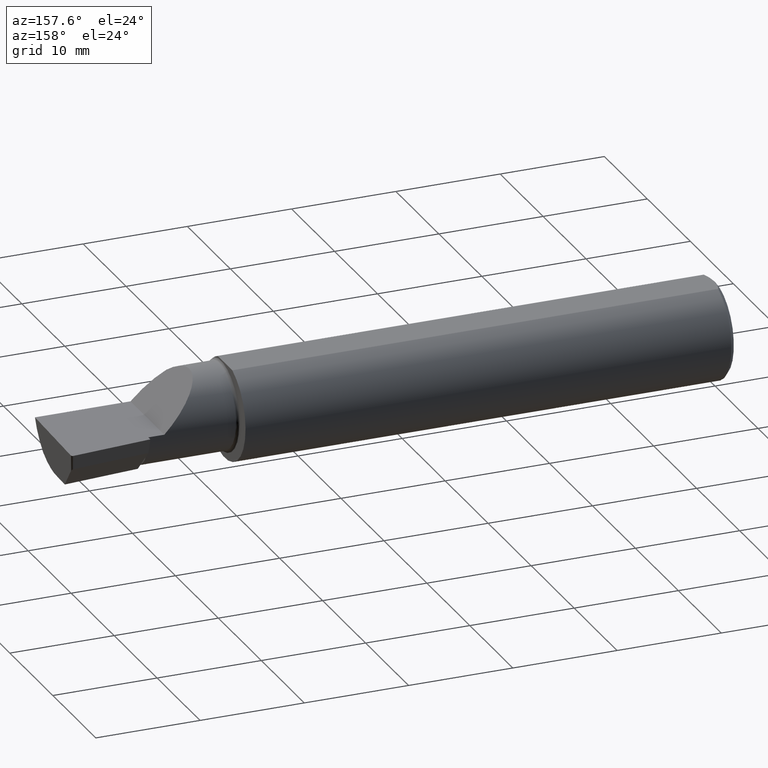
[diagram: clean part render]
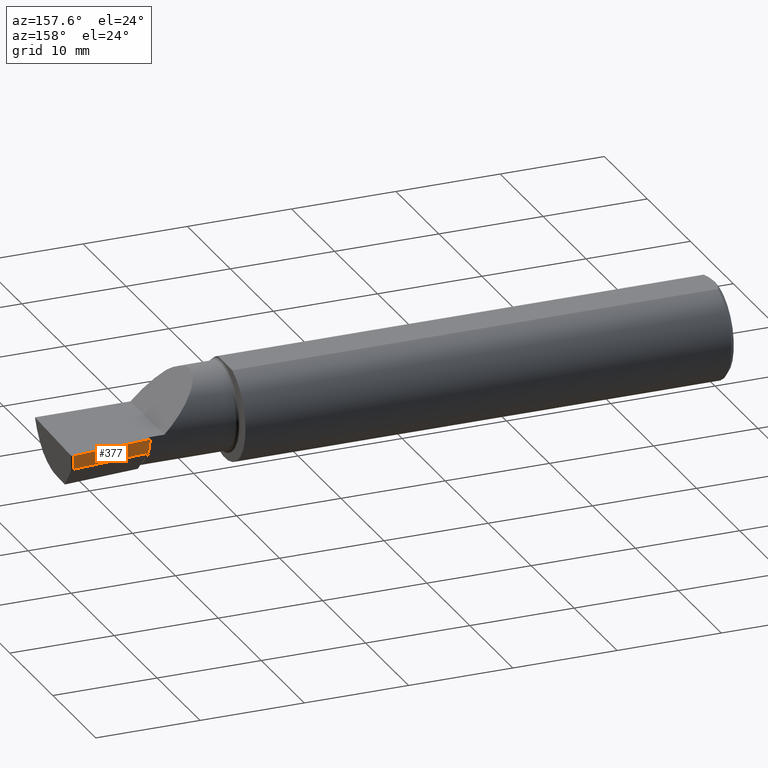
[diagram: same view with one face highlighted and labeled with its STEP entity id]
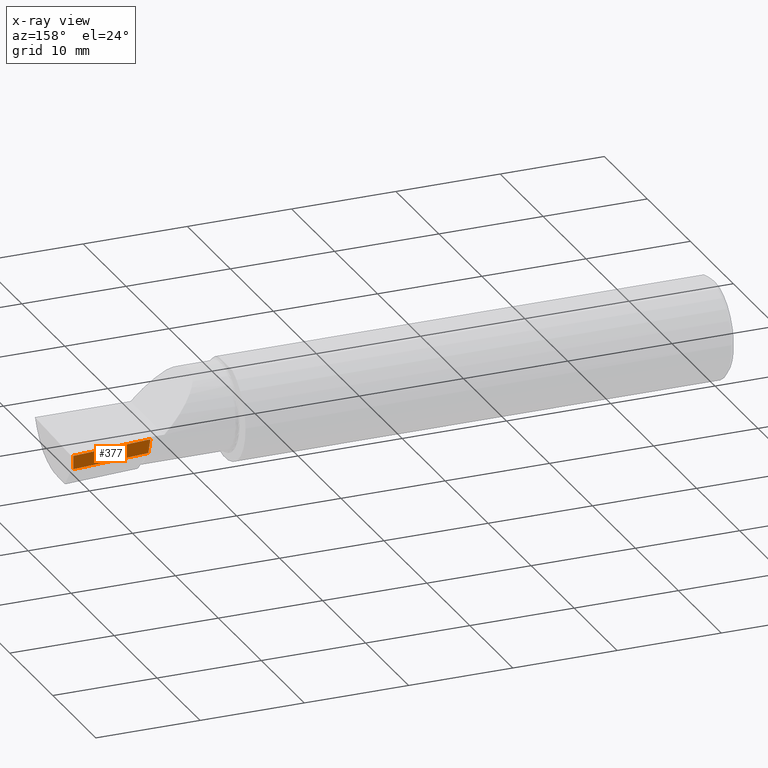
[diagram: x-ray of the same camera — body ghosted, the highlighted face saturated]
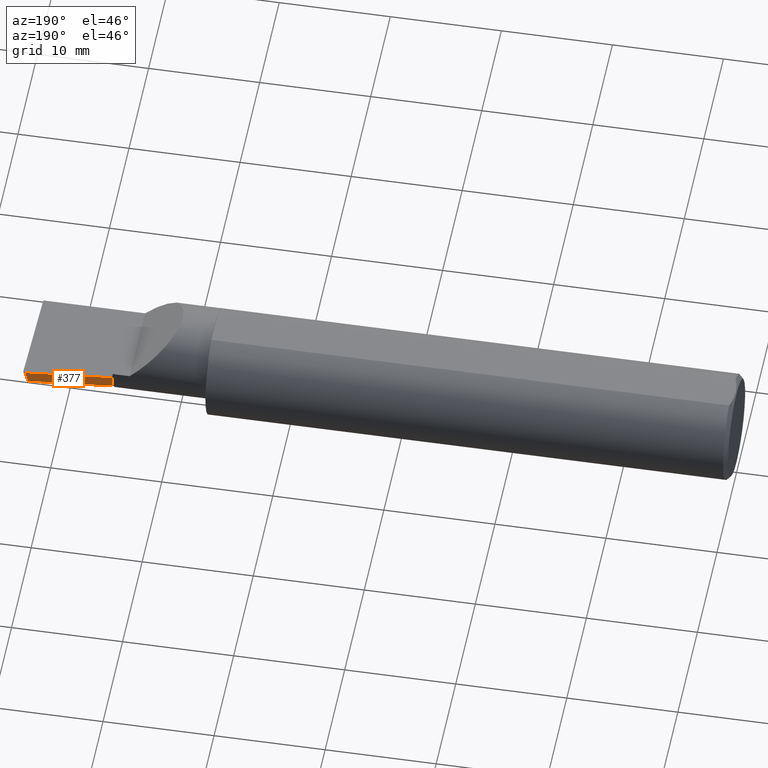
[diagram: same view with one face highlighted and labeled with its STEP entity id]
A machine part, auxiliary view. The second image highlights one B-rep face of the part: STEP entity #377.
The next image is the same camera in x-ray: the body ghosted, the highlighted face saturated — about 0% of this face is hidden behind the body in this view.
A second angle (auxiliary view) of the same face is appended — the face is thin or edge-on in the first view.
In plain terms, the highlighted planar face has unit normal (-0.0917, 0.9519, -0.2924).
Its self-contained STEP definition (entity closure, byte-faithful):
#19 = CARTESIAN_POINT ( 'NONE',  ( 2.190000000000000391, 0.1408003950587674580, 3.286754617377316716E-16 ) ) ;
#28 = EDGE_CURVE ( 'NONE', #554, #584, #606, .T. ) ;
#62 = LINE ( 'NONE', #282, #134 ) ;
#97 = EDGE_CURVE ( 'NONE', #584, #298, #615, .T. ) ;
#103 = DIRECTION ( 'NONE',  ( -0.09165774897393336174, 0.9519021185660612172, -0.2923717047227308297 ) ) ;
#109 = VECTOR ( 'NONE', #687, 39.37007874015748143 ) ;
#117 = CARTESIAN_POINT ( 'NONE',  ( 2.485034660857471600, 0.1507803188501235514, -0.05999999999999999084 ) ) ;
#132 = CARTESIAN_POINT ( 'NONE',  ( 0.3393181374772709646, -0.03739999999999999575, 2.916527262322781592E-16 ) ) ;
#134 = VECTOR ( 'NONE', #571, 39.37007874015748143 ) ;
#192 = VECTOR ( 'NONE', #238, 39.37007874015748143 ) ;
#202 = FACE_OUTER_BOUND ( 'NONE', #534, .T. ) ;
#213 = CARTESIAN_POINT ( 'NONE',  ( 2.190000000000000391, 0.1223717121708781524, -0.05999999999999999084 ) ) ;
#238 = DIRECTION ( 'NONE',  ( 0.9953961983671787417, 0.09584575252022464742, -1.028972571603813720E-16 ) ) ;
#282 = CARTESIAN_POINT ( 'NONE',  ( 2.190000000000000391, 0.1375075152821363667, -0.01072093908174520487 ) ) ;
#298 = VERTEX_POINT ( 'NONE', #213 ) ;
#324 = DIRECTION ( 'NONE',  ( 0.000000000000000000, 0.2936076258024065688, 0.9559260233253794592 ) ) ;
#341 = CARTESIAN_POINT ( 'NONE',  ( 2.492906680581914447, 0.1699669910246714710, 6.902945873236853560E-17 ) ) ;
#375 = PLANE ( 'NONE',  #392 ) ;
#377 = ADVANCED_FACE ( 'NONE', ( #202 ), #375, .T. ) ;
#392 = AXIS2_PLACEMENT_3D ( 'NONE', #589, #103, #324 ) ;
#420 = ORIENTED_EDGE ( 'NONE', *, *, #600, .F. ) ;
#443 = VECTOR ( 'NONE', #509, 39.37007874015748854 ) ;
#460 = ORIENTED_EDGE ( 'NONE', *, *, #686, .T. ) ;
#509 = DIRECTION ( 'NONE',  ( -0.9953961983671800740, -0.09584575252021031166, 0.000000000000000000 ) ) ;
#534 = EDGE_LOOP ( 'NONE', ( #460, #547, #579, #420 ) ) ;
#547 = ORIENTED_EDGE ( 'NONE', *, *, #28, .T. ) ;
#554 = VERTEX_POINT ( 'NONE', #341 ) ;
#571 = DIRECTION ( 'NONE',  ( -2.005228508682080903E-18, -0.2936076258024066798, -0.9559260233253794592 ) ) ;
#579 = ORIENTED_EDGE ( 'NONE', *, *, #97, .T. ) ;
#584 = VERTEX_POINT ( 'NONE', #117 ) ;
#589 = CARTESIAN_POINT ( 'NONE',  ( 2.509953961983672599, 0.1716084575252021238, -6.829619984160658046E-17 ) ) ;
#600 = EDGE_CURVE ( 'NONE', #689, #298, #62, .T. ) ;
#601 = CARTESIAN_POINT ( 'NONE',  ( 2.485169328570995262, 0.1511085478640639412, -0.05897357182854515850 ) ) ;
#606 = LINE ( 'NONE', #601, #109 ) ;
#609 = CARTESIAN_POINT ( 'NONE',  ( 2.511712141217647964, 0.1533490680423131025, -0.05999999999999999084 ) ) ;
#615 = LINE ( 'NONE', #609, #443 ) ;
#665 = LINE ( 'NONE', #132, #192 ) ;
#686 = EDGE_CURVE ( 'NONE', #689, #554, #665, .T. ) ;
#687 = DIRECTION ( 'NONE',  ( -0.1240019227989955231, -0.3022330132596681707, -0.9451342385281221725 ) ) ;
#689 = VERTEX_POINT ( 'NONE', #19 ) ;